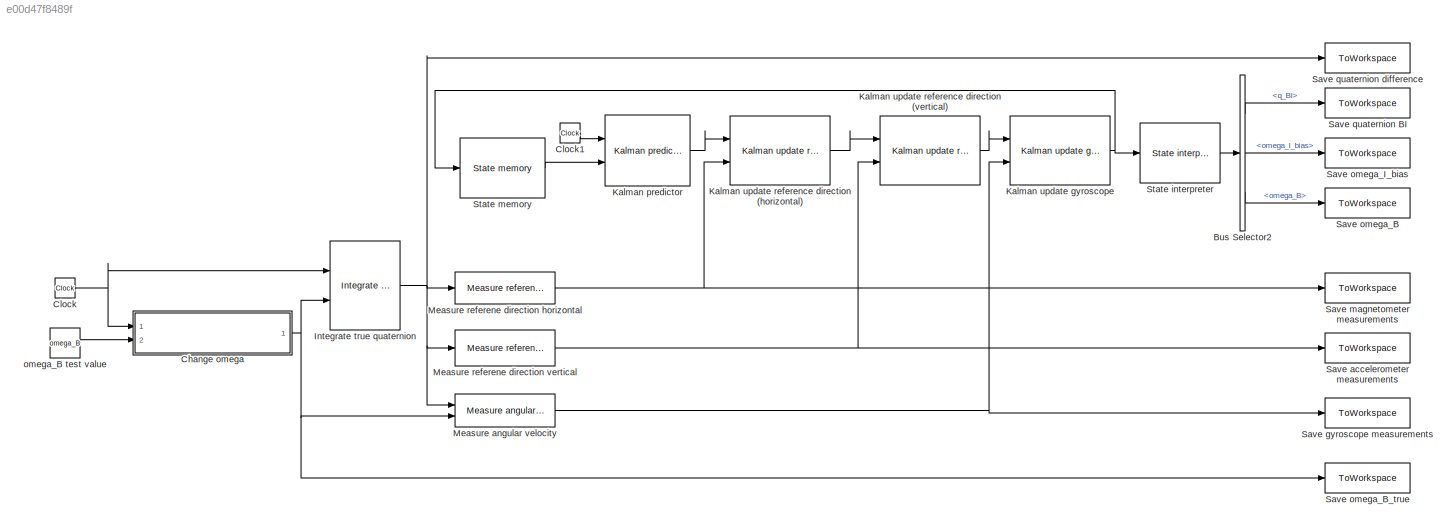
MODEL slx_e00d47f8489f
KIND model
BLOCK [BusSelector] Bus Selector2
  OutputSignals = q_BI,omega_I_bias,omega_B
  Ports = [1, 3]
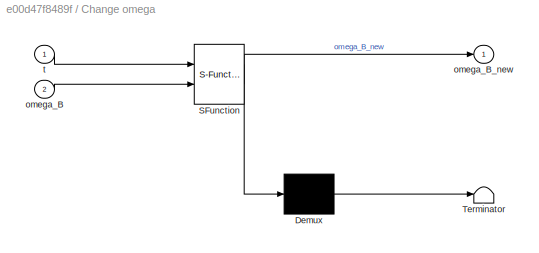
BLOCK [SubSystem] Change omega
  ErrorFcn = Stateflow.Translate.translate
  PermitHierarchicalResolution = ExplicitOnly
  Ports = [2, 1]
  RequestExecContextInheritance = off
  SFBlockType = MATLAB Function
  TreatAsAtomicUnit = on
BLOCK [Demux] Change omega/ Demux 
  Outputs = 1
  Ports = [1, 1]
BLOCK [S-Function] Change omega/ SFunction 
  EnableBusSupport = on
  FunctionName = sf_sfun
  PortCounts = [2 2]
  Ports = [2, 2]
  Tag = Stateflow S-Function kalman_gyro_synchronous 3
BLOCK [Terminator] Change omega/ Terminator 
BLOCK [Inport] Change omega/omega_B
  IconDisplay = Port number
  Port = 2
BLOCK [Outport] Change omega/omega_B_new
  IconDisplay = Port number
BLOCK [Inport] Change omega/t
  IconDisplay = Port number
BLOCK [Clock] Clock
BLOCK [Clock] Clock1
BLOCK [Reference] Integrate true quaternion  REF=lib_gyro_fusion/Integrate true quaternion  (lib defined in slx_a4b6311b9d1d)
  Ports = [2, 1]
  SourceBlock = lib_gyro_fusion/Integrate true quaternion
  q_BI_init = q_init
BLOCK [Reference] Kalman predictor  REF=lib_gyro_fusion/Kalman predictor  (lib defined in slx_a4b6311b9d1d)
  Ports = [2, 1]
  SourceBlock = lib_gyro_fusion/Kalman predictor
  omega_B_noise = omega_B_noise
  omega_I_bias_noise = omega_bias_I_noise
  q_noise = q_noise
BLOCK [Reference] Kalman update gyroscope  REF=lib_gyro_fusion/Kalman update  (lib defined in slx_a4b6311b9d1d)
gyroscope
  Ports = [2, 1]
  SourceBlock = lib_gyro_fusion/Kalman update\ngyroscope
  SourceType = SubSystem
BLOCK [Reference] Kalman update reference direction (horizontal)  REF=lib_gyro_fusion/Kalman update reference direction  (lib defined in slx_a4b6311b9d1d)
  Ports = [2, 1]
  SourceBlock = lib_gyro_fusion/Kalman update reference direction
  SourceType = SubSystem
BLOCK [Reference] Kalman update reference direction (vertical)  REF=lib_gyro_fusion/Kalman update reference direction  (lib defined in slx_a4b6311b9d1d)
  Ports = [2, 1]
  SourceBlock = lib_gyro_fusion/Kalman update reference direction
  SourceType = SubSystem
BLOCK [Reference] Measure angular velocity  REF=lib_gyro_fusion/Measure angular velocity  (lib defined in slx_a4b6311b9d1d)
  Ports = [2, 1]
  SourceBlock = lib_gyro_fusion/Measure angular velocity
  SourceType = SubSystem
BLOCK [Reference] Measure referene direction horizontal  REF=lib_gyro_fusion/Measure referene direction  (lib defined in slx_a4b6311b9d1d)
  Ports = [1, 1]
  R_direction = horizontal_direction_R
  SourceBlock = lib_gyro_fusion/Measure referene direction
  measurement_noise_power = horizontal_direction_noise_power
  measurement_sample_rate = t_step
  ref_direction = horizontal_direction
  source_seeds = horizontal_direction_seeds
BLOCK [Reference] Measure referene direction vertical  REF=lib_gyro_fusion/Measure referene direction  (lib defined in slx_a4b6311b9d1d)
  Ports = [1, 1]
  R_direction = vertical_direction_R
  SourceBlock = lib_gyro_fusion/Measure referene direction
  measurement_noise_power = vertical_direction_noise_power
  measurement_sample_rate = t_step
  ref_direction = vertical_direction
  source_seeds = vertical_direction_seeds
BLOCK [ToWorkspace] Save accelerometer measurements
  FixptAsFi = on
  MaxDataPoints = inf
  Ports = [1]
  SampleTime = -1
  Save2DSignal = 3-D array (concatenate along third dimension)
  SaveFormat = Timeseries
  VariableName = acc_meas_out
BLOCK [ToWorkspace] Save gyroscope measurements
  FixptAsFi = on
  MaxDataPoints = inf
  Ports = [1]
  SampleTime = -1
  Save2DSignal = 3-D array (concatenate along third dimension)
  SaveFormat = Timeseries
  VariableName = gyro_meas_out
BLOCK [ToWorkspace] Save magnetometer measurements
  FixptAsFi = on
  MaxDataPoints = inf
  Ports = [1]
  SampleTime = -1
  Save2DSignal = 3-D array (concatenate along third dimension)
  SaveFormat = Timeseries
  VariableName = magnetometer_meas_out
BLOCK [ToWorkspace] Save omega_B
  FixptAsFi = on
  MaxDataPoints = inf
  Ports = [1]
  SampleTime = -1
  Save2DSignal = 3-D array (concatenate along third dimension)
  SaveFormat = Timeseries
  VariableName = omega_B_out
BLOCK [ToWorkspace] Save omega_B_true
  FixptAsFi = on
  MaxDataPoints = inf
  Ports = [1]
  SampleTime = -1
  Save2DSignal = 3-D array (concatenate along third dimension)
  SaveFormat = Timeseries
  VariableName = omega_B_true_out
BLOCK [ToWorkspace] Save omega_I_bias
  FixptAsFi = on
  MaxDataPoints = inf
  Ports = [1]
  SampleTime = -1
  Save2DSignal = 3-D array (concatenate along third dimension)
  SaveFormat = Timeseries
  VariableName = omega_I_bias_out
BLOCK [ToWorkspace] Save quaternion BI
  FixptAsFi = on
  MaxDataPoints = inf
  Ports = [1]
  SampleTime = -1
  Save2DSignal = 3-D array (concatenate along third dimension)
  SaveFormat = Timeseries
  VariableName = q_BI_out
BLOCK [ToWorkspace] Save quaternion difference
  FixptAsFi = on
  MaxDataPoints = inf
  Ports = [1]
  SampleTime = -1
  Save2DSignal = 3-D array (concatenate along third dimension)
  SaveFormat = Timeseries
  VariableName = q_true_out
BLOCK [Reference] State interpreter  REF=lib_gyro_fusion/State interpreter  (lib defined in slx_a4b6311b9d1d)
  Ports = [1, 1]
  SourceBlock = lib_gyro_fusion/State interpreter
  SourceType = SubSystem
BLOCK [Reference] State memory  REF=lib_gyro_fusion/State memory  (lib defined in slx_a4b6311b9d1d)
  P_full_init = eye(9)
  Ports = [1, 1]
  SourceBlock = lib_gyro_fusion/State memory
  omega_B_init = [0; 0; 0]
  omega_I_bias_init = [0; 0; 0]
  q_BI_init = [1; 0; 0; 0]
BLOCK [Constant] omega_B test value
  Value = omega_B
LINE Bus Selector2:1 -> Save quaternion BI:1
LINE Bus Selector2:2 -> Save omega_I_bias:1
LINE Bus Selector2:3 -> Save omega_B:1
NET Change omega:1 -> Integrate true quaternion:2, Measure angular velocity:2, Save omega_B_true:1
LINE Clock1:1 -> Kalman predictor:1
NET Clock:1 -> Change omega:1, Integrate true quaternion:1
NET Integrate true quaternion:1 -> Measure angular velocity:1, Measure referene direction horizontal:1, Measure referene direction vertical:1, Save quaternion difference:1
LINE Kalman predictor:1 -> Kalman update reference direction (horizontal):1
NET Kalman update gyroscope:1 -> State interpreter:1, State memory:1
LINE Kalman update reference direction (horizontal):1 -> Kalman update reference direction (vertical):1
LINE Kalman update reference direction (vertical):1 -> Kalman update gyroscope:1
NET Measure angular velocity:1 -> Kalman update gyroscope:2, Save gyroscope measurements:1
NET Measure referene direction horizontal:1 -> Kalman update reference direction (horizontal):2, Save magnetometer measurements:1
NET Measure referene direction vertical:1 -> Kalman update reference direction (vertical):2, Save accelerometer measurements:1
LINE State interpreter:1 -> Bus Selector2:1
LINE State memory:1 -> Kalman predictor:2
LINE omega_B test value:1 -> Change omega:2
note: NET lines group one-source signal fan-out (src -> all destinations, sorted); 1:1 wires keep LINE
